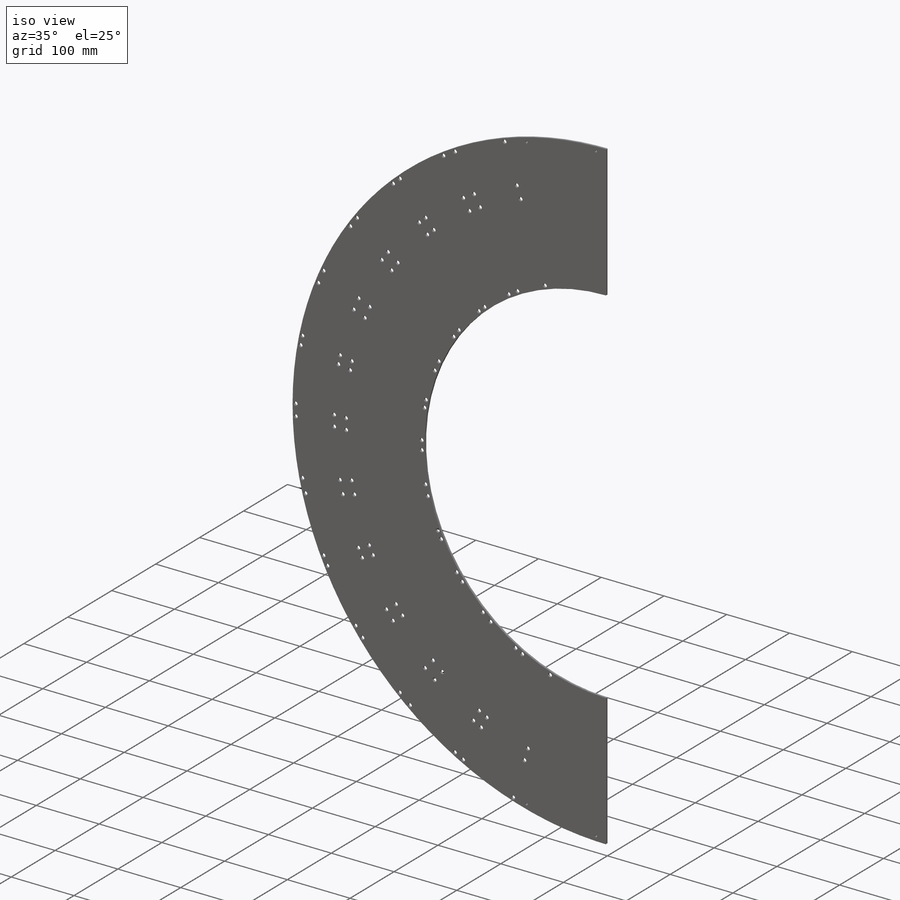
[diagram: iso view]
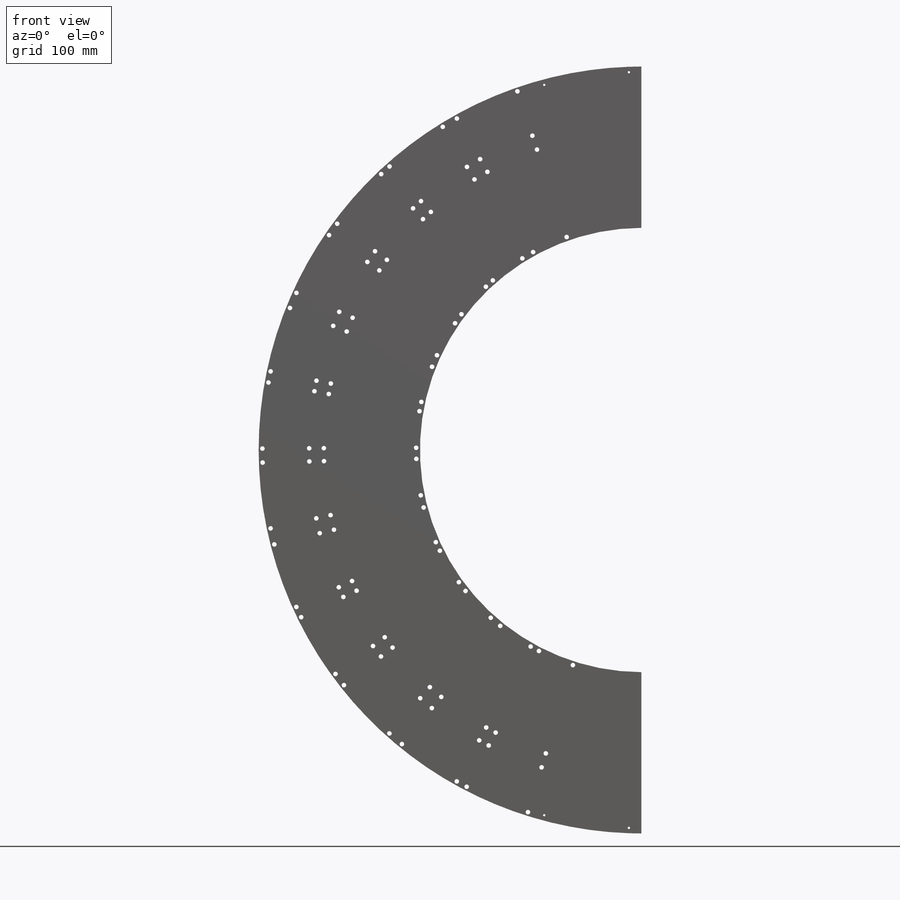
[diagram: front view]
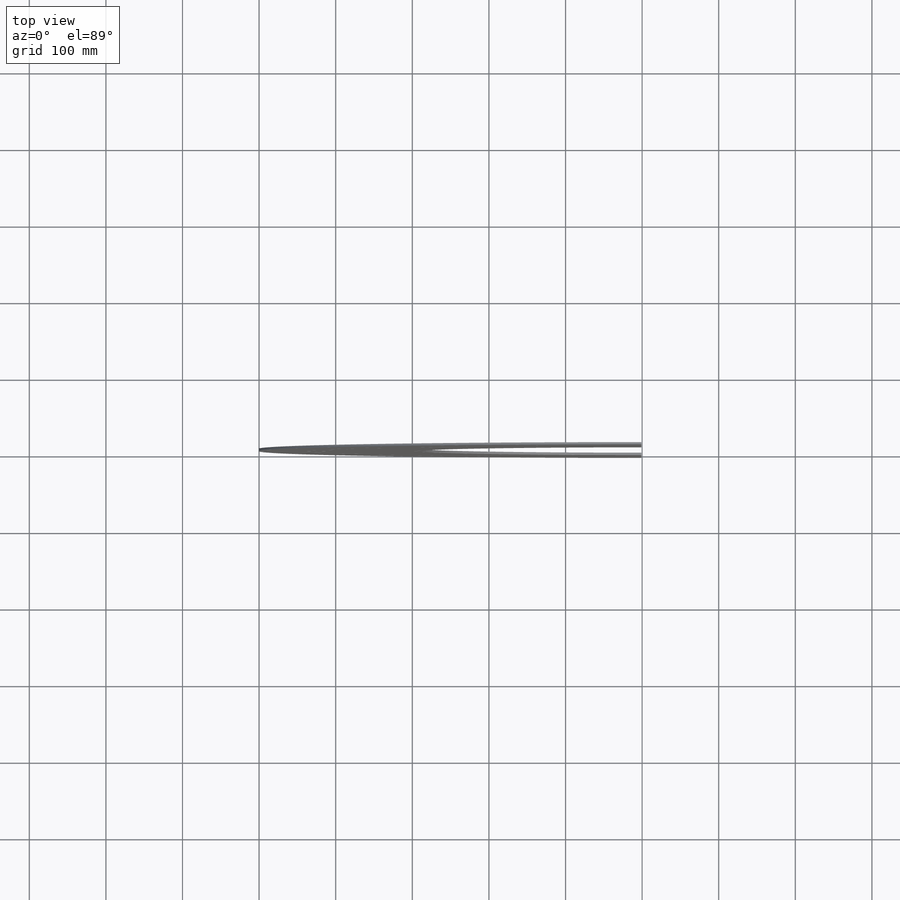
[diagram: top view]
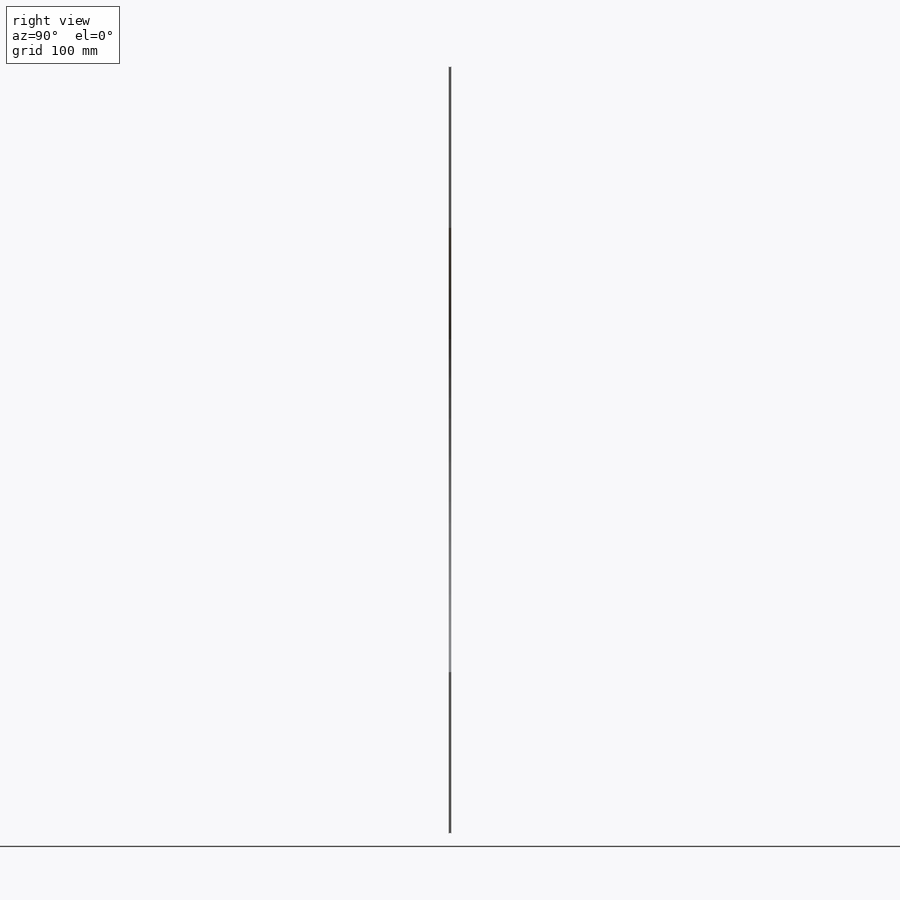
[diagram: right view]
SOLIDWORKS PART (.sldprt)
format: sldprt  version: not decoded by parser v0  size: 5,461,504 bytes
history: native  units: mm
features: sketch x13, cut_extrude x8, plane x4, material x1, extrude x1, pattern_circular x1, fillet x1, chamfer x1, sweep x1, hole x1 (+13 scaffold rows collapsed)
feature tree (45):
  scaffold x13  (default folders/planes/origin — collapsed)
  material  "6061 Alloy"
  plane  "Plane1"
  plane  "Plane2"
  plane  "Plane3"
  plane  "Plane4"
  sketch  "Sketch1"  dims[c1.D2=~500.606371mm c1.D1=~242.727251mm c1.D3=~508.302082mm c2.D3=~28.84249deg c3.D3=~504.412951mm c4.D3=29.17deg c4.D4=2.5mm c5.D3=~236.634681mm c6.D3=180.0deg]
  extrude  "Extrude1"  Depth=3.175mm
  sketch  "Sketch12"  dims[D1=1.0mm D2=20.0mm D3=100.0mm]
  cut_extrude  "Extrude7"  [1 undecoded]
  sketch  "Sketch10"  dims[c1.D2=392.0mm c1.D1=~167.856133mm c2.D1=3.75deg]
  cut_extrude  "Cut-Extrude2"  [1 undecoded]
  sketch  "Sketch11"  dims[c1.D5=2.8448mm c1.D6=3.4544mm c1.D7=3.4544mm c1.D1=~14.708039mm c2.D1=18.75deg c2.D2=202.35mm c2.D3=~523.097574mm c2.D4=369.15mm c2.D6=~196.081849mm c2.D7=60.0mm]
  cut_extrude  "FVTX electronics board mtg holes"  [1 undecoded]
  pattern_circular  "CirPattern1"  Count=6 Angle=30deg
  fillet  "Fillet1"  Radius=12.7mm
  sketch  "Sketch13"
  cut_extrude  "barrel 4 electronics board mtg holes"  [1 undecoded]
  sketch  "Sketch14"
  cut_extrude  "barrel 3 electronics board mtg holes"  [1 undecoded]
  sketch  "Sketch16"
  cut_extrude  "barrel 1 electronics board mtg holes"  [1 undecoded]
  sketch  "Sketch19"
  cut_extrude  "barrel 2B electronics board mtg holes"  [1 undecoded]
  sketch  "Sketch20"
  cut_extrude  "barrel 2A electronics board mtg holes"  [1 undecoded]
  chamfer  "Chamfer1"  Distance=1mm Angle=45deg
  sketch  "Sketch21"  dims[D2=4.7625mm D1=~502.38125mm]
  sketch  "Sketch22"
  sweep  "Cut-Sweep1"
  hole  "Ø3.0 (3) Diameter Hole1"  Diameter=3mm Depth=3.175mm
  sketch  "Sketch24"  dims[c1.D1=~493.53125mm c1.D2=~493.230604mm c2.D2=13.0deg c2.D3=~476.71458mm c3.D3=75.0deg]
  sketch  "Sketch23"  dims[hole-wizard template sketch: 46 standard entries collapsed; hole parameters kept: c15.Thru Hole Dia.=3.0mm c15.Thru Hole Depth=3.175mm c15.Near C'Sink Dia.=3.4mm c15.D4=~3.666174mm c15.Near C'Sink Angle=90.0deg c15.Far C'Sink Dia.=3.4mm c15.D6=~9.919017mm c15.Far C'Sink Angle=90.0deg]
decode coverage: 12 of 27 modeling features carry decoded parameters
note: ~ marks probable driven/reference dimensions
note: 8 parameter values undecoded
summary: no parameter record found for 8 features
note: suppression state not decoded; provenance and decode notes live in map.json
